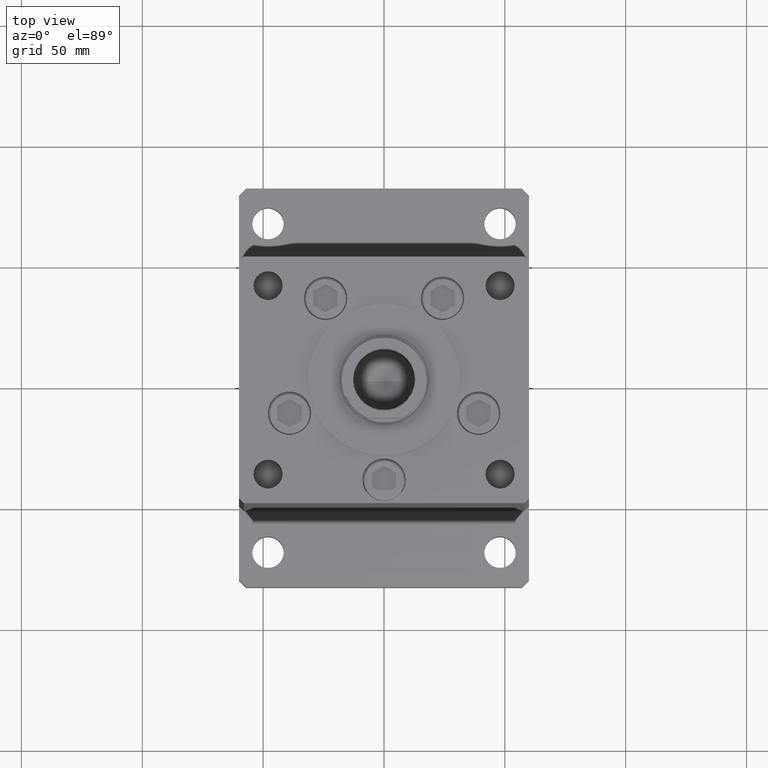
[diagram: clean part render]
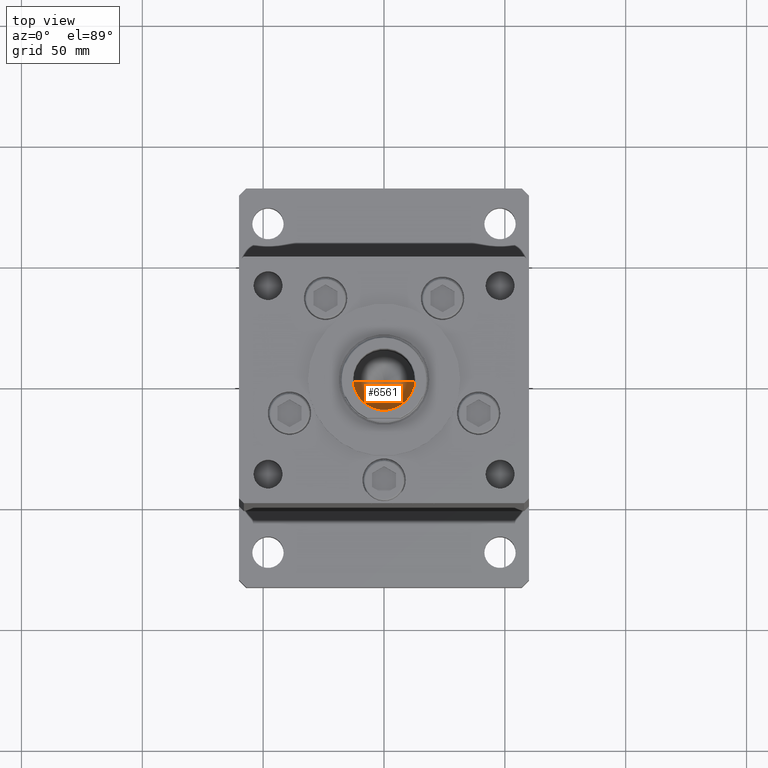
[diagram: same view with one face highlighted and labeled with its STEP entity id]
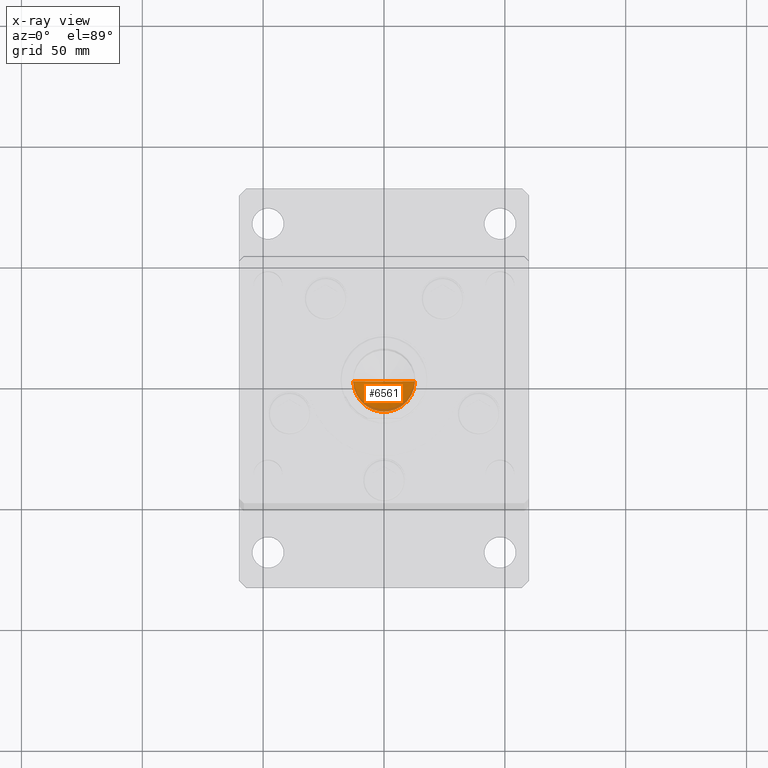
[diagram: x-ray of the same camera — body ghosted, the highlighted face saturated]
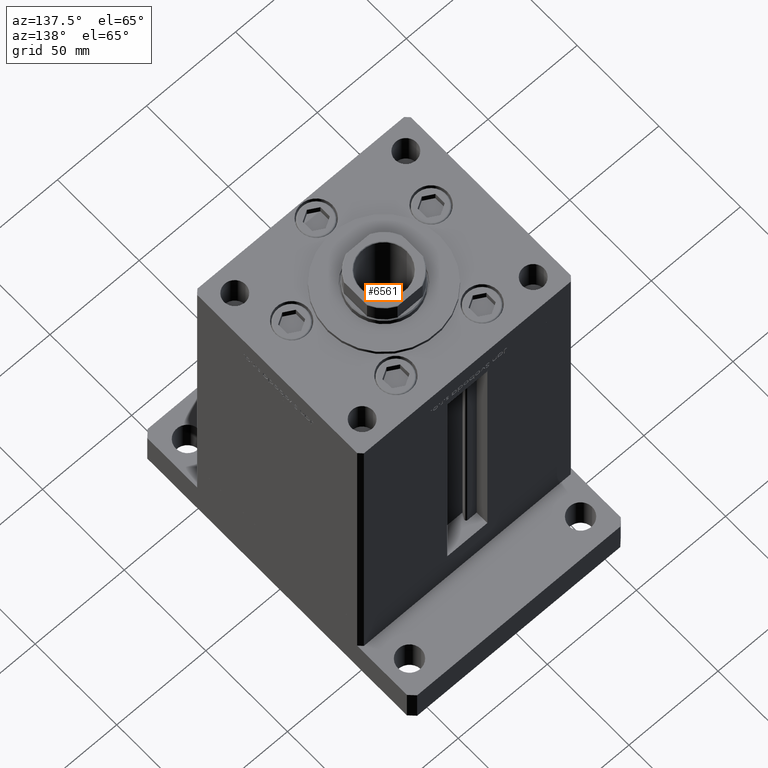
[diagram: same view with one face highlighted and labeled with its STEP entity id]
A machine part, top view. The second image highlights one B-rep face of the part: STEP entity #6561.
The next image is the same camera in x-ray: the body ghosted, the highlighted face saturated — about 8% of this face is hidden behind the body in this view.
A second angle (auxiliary view) of the same face is appended — the face is thin or edge-on in the first view.
In plain terms, the highlighted conical surface has half-angle 59 deg.
Its self-contained STEP definition (entity closure, byte-faithful):
#706 = DIRECTION ( 'NONE',  ( 1.000000000000000000, 0.000000000000000000, 0.000000000000000000 ) ) ;
#1124 = CARTESIAN_POINT ( 'NONE',  ( 12.74999999999999112, 0.000000000000000000, 124.2500000000000142 ) ) ;
#1259 = CARTESIAN_POINT ( 'NONE',  ( -12.74999999999999112, 1.561424668912874125E-15, 124.2500000000000142 ) ) ;
#3343 = CARTESIAN_POINT ( 'NONE',  ( 0.000000000000000000, 0.000000000000000000, 124.2500000000000142 ) ) ;
#3871 = FACE_OUTER_BOUND ( 'NONE', #15133, .T. ) ;
#6561 = ADVANCED_FACE ( 'NONE', ( #3871 ), #26588, .F. ) ;
#11275 = AXIS2_PLACEMENT_3D ( 'NONE', #12340, #28783, #706 ) ;
#11648 = EDGE_CURVE ( 'NONE', #34749, #27773, #46287, .T. ) ;
#11983 = ORIENTED_EDGE ( 'NONE', *, *, #28116, .T. ) ;
#12126 = VECTOR ( 'NONE', #14211, 1000.000000000000000 ) ;
#12340 = CARTESIAN_POINT ( 'NONE',  ( 0.000000000000000000, 0.000000000000000000, 124.2500000000000142 ) ) ;
#14211 = DIRECTION ( 'NONE',  ( -0.8571673007021117785, 1.049727191138617956E-16, 0.5150380749100550437 ) ) ;
#15074 = VECTOR ( 'NONE', #21261, 1000.000000000000000 ) ;
#15133 = EDGE_LOOP ( 'NONE', ( #16818, #32788, #11983 ) ) ;
#16818 = ORIENTED_EDGE ( 'NONE', *, *, #43589, .F. ) ;
#19796 = DIRECTION ( 'NONE',  ( 1.000000000000000000, 0.000000000000000000, 0.000000000000000000 ) ) ;
#20725 = CIRCLE ( 'NONE', #11275, 12.74999999999999112 ) ;
#21261 = DIRECTION ( 'NONE',  ( 0.8571673007021117785, 0.000000000000000000, 0.5150380749100550437 ) ) ;
#26588 = CONICAL_SURFACE ( 'NONE', #35176, 12.74999999999999112, 1.029744258676653423 ) ;
#27773 = VERTEX_POINT ( 'NONE', #37262 ) ;
#28116 = EDGE_CURVE ( 'NONE', #27773, #31883, #20725, .T. ) ;
#28783 = DIRECTION ( 'NONE',  ( -0.000000000000000000, -0.000000000000000000, 1.000000000000000000 ) ) ;
#31883 = VERTEX_POINT ( 'NONE', #1124 ) ;
#32763 = CARTESIAN_POINT ( 'NONE',  ( -1.307202896762960287E-14, 0.000000000000000000, 116.5890271073986213 ) ) ;
#32788 = ORIENTED_EDGE ( 'NONE', *, *, #11648, .T. ) ;
#33931 = LINE ( 'NONE', #41742, #15074 ) ;
#34749 = VERTEX_POINT ( 'NONE', #32763 ) ;
#35176 = AXIS2_PLACEMENT_3D ( 'NONE', #3343, #48364, #19796 ) ;
#37262 = CARTESIAN_POINT ( 'NONE',  ( -12.74999999999999112, 1.561424668912874125E-15, 124.2500000000000142 ) ) ;
#41742 = CARTESIAN_POINT ( 'NONE',  ( 12.74999999999999112, 0.000000000000000000, 124.2500000000000142 ) ) ;
#43589 = EDGE_CURVE ( 'NONE', #34749, #31883, #33931, .T. ) ;
#46287 = LINE ( 'NONE', #1259, #12126 ) ;
#48364 = DIRECTION ( 'NONE',  ( -0.000000000000000000, -0.000000000000000000, 1.000000000000000000 ) ) ;